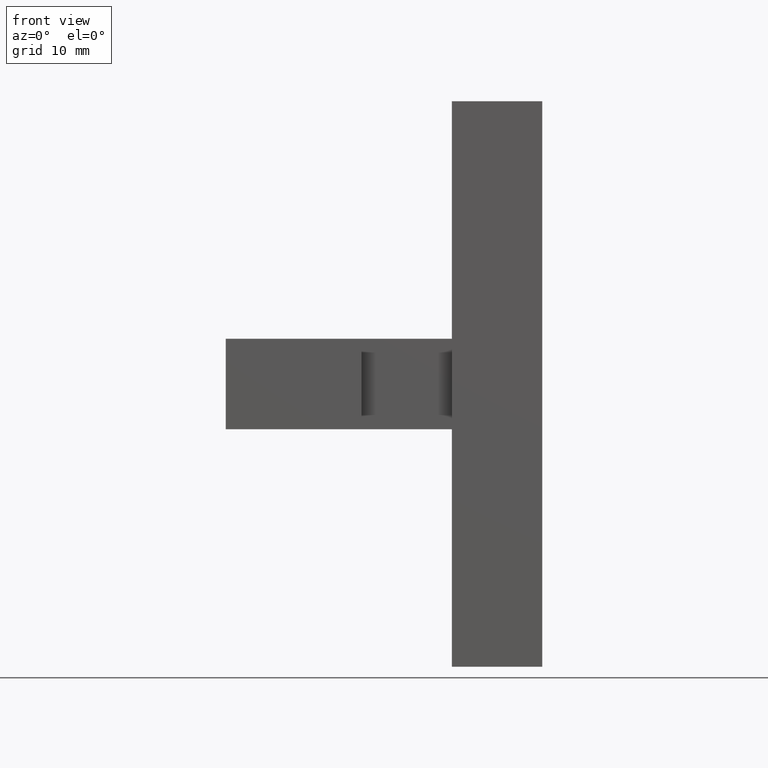
[diagram: clean part render]
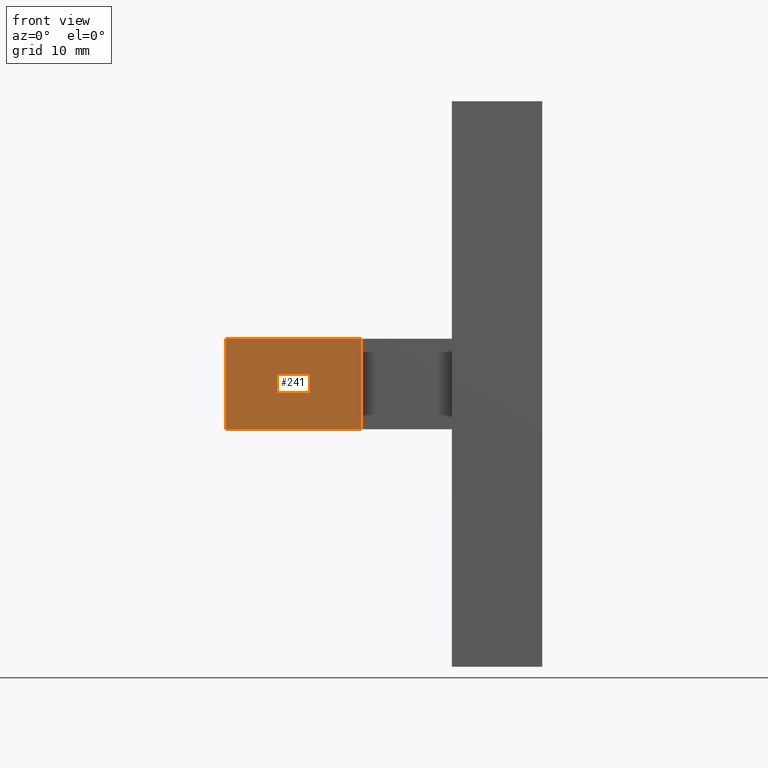
[diagram: same view with one face highlighted and labeled with its STEP entity id]
A machine part, front view. The second image highlights one B-rep face of the part: STEP entity #241.
In plain terms, the highlighted planar face has unit normal (0, -1, 0).
Its self-contained STEP definition (entity closure, byte-faithful):
#27=FACE_OUTER_BOUND('',#40,.T.);
#40=EDGE_LOOP('',(#204,#205,#206,#207));
#60=LINE('',#378,#91);
#70=LINE('',#396,#101);
#71=LINE('',#399,#102);
#72=LINE('',#400,#103);
#91=VECTOR('',#313,10.);
#101=VECTOR('',#329,10.);
#102=VECTOR('',#332,10.);
#103=VECTOR('',#333,10.);
#117=VERTEX_POINT('',#376);
#118=VERTEX_POINT('',#377);
#123=VERTEX_POINT('',#394);
#124=VERTEX_POINT('',#398);
#142=EDGE_CURVE('',#117,#118,#60,.T.);
#152=EDGE_CURVE('',#123,#118,#70,.T.);
#153=EDGE_CURVE('',#123,#124,#71,.T.);
#154=EDGE_CURVE('',#117,#124,#72,.T.);
#204=ORIENTED_EDGE('',*,*,#153,.T.);
#205=ORIENTED_EDGE('',*,*,#154,.F.);
#206=ORIENTED_EDGE('',*,*,#142,.T.);
#207=ORIENTED_EDGE('',*,*,#152,.F.);
#228=PLANE('',#277);
#241=ADVANCED_FACE('',(#27),#228,.T.);
#277=AXIS2_PLACEMENT_3D('',#397,#330,#331);
#313=DIRECTION('',(1.,4.85722573273506E-16,0.));
#329=DIRECTION('',(0.,0.,-1.));
#330=DIRECTION('center_axis',(4.85722573273506E-16,-1.,0.));
#331=DIRECTION('ref_axis',(0.,0.,-1.));
#332=DIRECTION('',(-1.,-4.85722573273506E-16,0.));
#333=DIRECTION('',(0.,0.,1.));
#376=CARTESIAN_POINT('',(-20.,1.66533453693773E-15,-4.));
#377=CARTESIAN_POINT('',(-8.,7.49400541621981E-15,-4.));
#378=CARTESIAN_POINT('',(-8.,7.49400541621981E-15,-4.));
#394=CARTESIAN_POINT('',(-8.,7.49400541621981E-15,4.));
#396=CARTESIAN_POINT('',(-8.,7.49400541621981E-15,0.));
#397=CARTESIAN_POINT('Origin',(-8.,7.49400541621981E-15,0.));
#398=CARTESIAN_POINT('',(-20.,1.66533453693773E-15,4.));
#399=CARTESIAN_POINT('',(-8.,7.49400541621981E-15,4.));
#400=CARTESIAN_POINT('',(-20.,1.66533453693773E-15,0.));